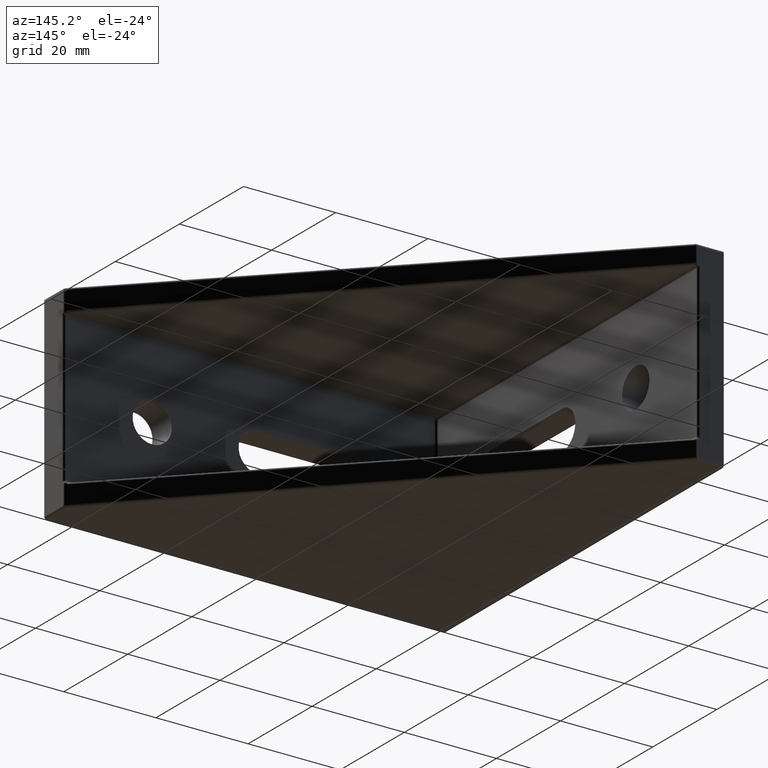
[diagram: clean part render]
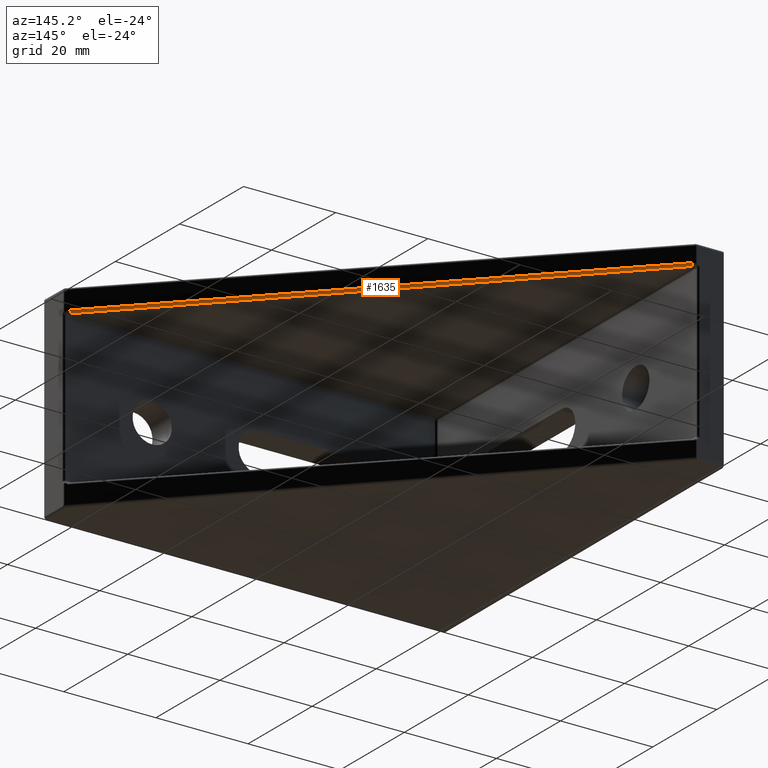
[diagram: same view with one face highlighted and labeled with its STEP entity id]
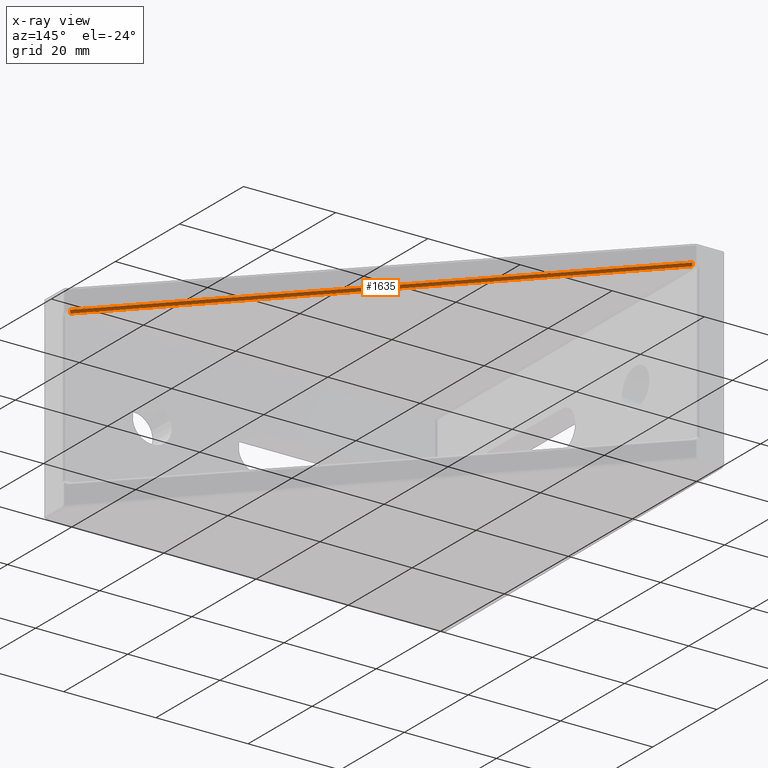
[diagram: x-ray of the same camera — body ghosted, the highlighted face saturated]
A machine part, auxiliary view. The second image highlights one B-rep face of the part: STEP entity #1635.
The next image is the same camera in x-ray: the body ghosted, the highlighted face saturated — about 0% of this face is hidden behind the body in this view.
In plain terms, the highlighted cylindrical surface (edge-blend (fillet) strip) has radius 0.5 mm, axis along (-0.7071, 0.7071, 0.0031).
Its self-contained STEP definition (entity closure, byte-faithful):
#316=CARTESIAN_POINT('',(-36.996151158112994,42.996151158112994,17.349695029427007));
#317=VERTEX_POINT('',#316);
#358=CARTESIAN_POINT('',(42.650809918691508,-36.650809918691458,17.002167396446143));
#359=VERTEX_POINT('',#358);
#374=CARTESIAN_POINT('',(42.650809918691500,-36.650809918691508,17.002167396446143));
#375=DIRECTION('',(-0.707103415589059,0.707103415589059,0.003085340268731));
#376=VECTOR('',#375,112.638348678395100);
#377=LINE('',#374,#376);
#378=EDGE_CURVE('',#359,#317,#377,.T.);
#855=CARTESIAN_POINT('',(-37.349704548706278,42.644779422162081,16.849699789066637));
#856=VERTEX_POINT('',#855);
#863=CARTESIAN_POINT('',(42.297256528098231,-37.002181654642371,16.502172156085777));
#864=VERTEX_POINT('',#863);
#865=CARTESIAN_POINT('',(-37.349704548706278,42.644779422162095,16.849699789066641));
#866=DIRECTION('',(0.707103415589059,-0.707103415589059,-0.003085340268731));
#867=VECTOR('',#866,112.638348678395080);
#868=LINE('',#865,#867);
#869=EDGE_CURVE('',#856,#864,#868,.T.);
#1608=CARTESIAN_POINT('',(42.297256528098245,-37.004363309284741,17.002167396446147));
#1609=DIRECTION('',(-0.707103415589059,0.707103415589059,0.003085340268720));
#1610=DIRECTION('',(-0.707106781186548,-0.707106781186548,0.0));
#1611=AXIS2_PLACEMENT_3D('',#1608,#1609,#1610);
#1612=CIRCLE('',#1611,0.499999999999998);
#1613=EDGE_CURVE('',#359,#864,#1612,.T.);
#1618=CARTESIAN_POINT('',(42.297256535169275,-37.004363316355800,17.002167396415288));
#1619=DIRECTION('',(-0.707103415589059,0.707103415589059,0.003085340268731));
#1620=DIRECTION('',(-0.707106781186548,-0.707106781186548,0.0));
#1621=AXIS2_PLACEMENT_3D('',#1618,#1619,#1620);
#1622=CYLINDRICAL_SURFACE('',#1621,0.499999999999998);
#1623=ORIENTED_EDGE('',*,*,#1613,.T.);
#1624=ORIENTED_EDGE('',*,*,#869,.F.);
#1625=CARTESIAN_POINT('',(-37.349704548706285,42.642597767519746,17.349695029427007));
#1626=DIRECTION('',(-0.707103415589059,0.707103415589059,0.003085340268730));
#1627=DIRECTION('',(-0.707106781186548,-0.707106781186548,0.0));
#1628=AXIS2_PLACEMENT_3D('',#1625,#1626,#1627);
#1629=CIRCLE('',#1628,0.499999999999998);
#1630=EDGE_CURVE('',#317,#856,#1629,.T.);
#1631=ORIENTED_EDGE('',*,*,#1630,.F.);
#1632=ORIENTED_EDGE('',*,*,#378,.F.);
#1633=EDGE_LOOP('',(#1623,#1624,#1631,#1632));
#1634=FACE_OUTER_BOUND('',#1633,.T.);
#1635=ADVANCED_FACE('',(#1634),#1622,.T.);